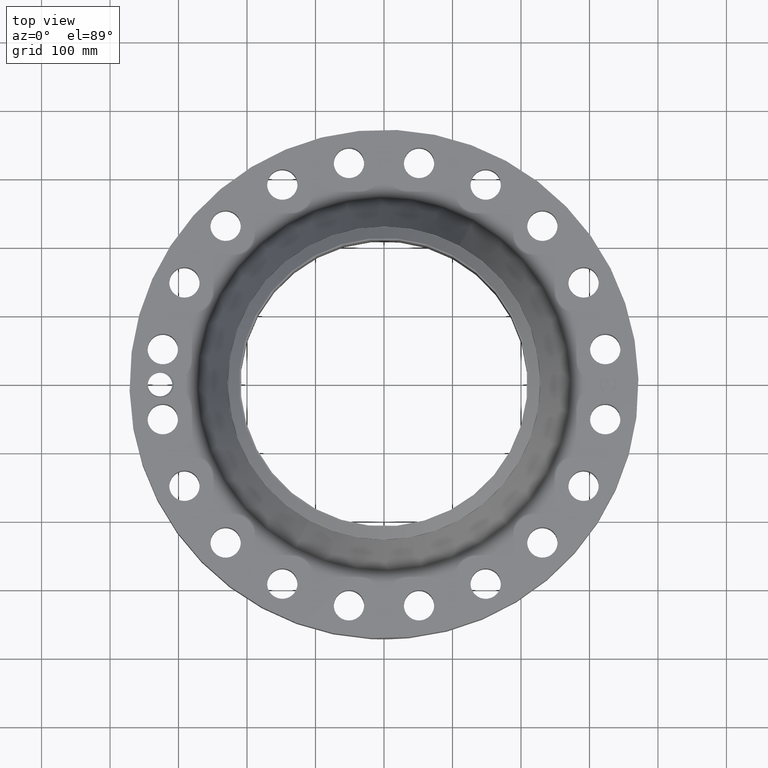
[diagram: clean part render]
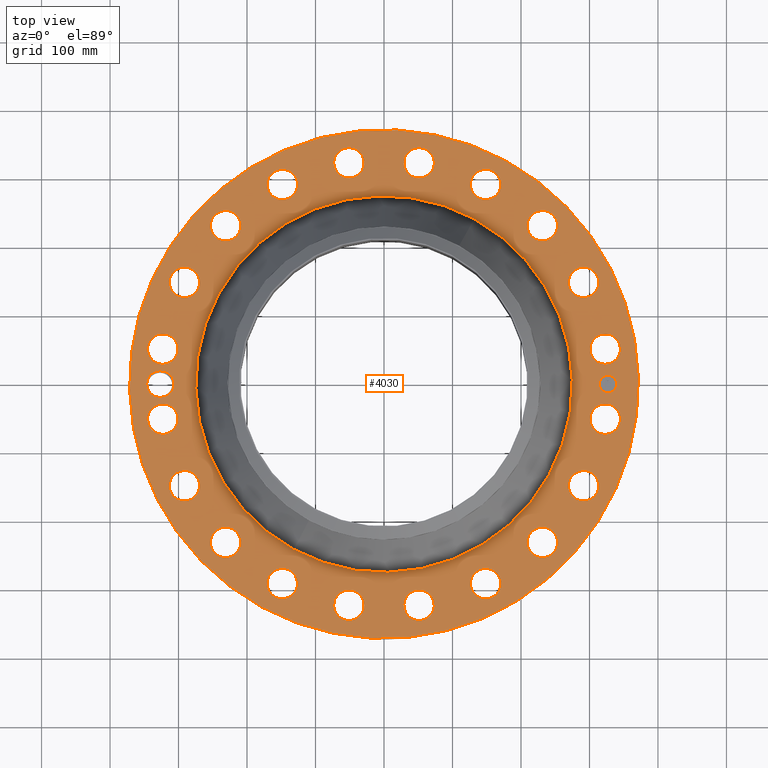
[diagram: same view with one face highlighted and labeled with its STEP entity id]
A machine part, top view. The second image highlights one B-rep face of the part: STEP entity #4030.
In plain terms, the highlighted planar face has unit normal (0, 0, -1).
Its self-contained STEP definition (entity closure, byte-faithful):
#2918=AXIS2_PLACEMENT_3D('Circle Axis2P3D',#2916,#2917,$) ;
#2944=AXIS2_PLACEMENT_3D('Circle Axis2P3D',#2942,#2943,$) ;
#3570=AXIS2_PLACEMENT_3D('Plane Axis2P3D',#3567,#3568,#3569) ;
#3574=AXIS2_PLACEMENT_3D('Circle Axis2P3D',#3572,#3573,$) ;
#3583=AXIS2_PLACEMENT_3D('Circle Axis2P3D',#3581,#3582,$) ;
#3632=AXIS2_PLACEMENT_3D('Circle Axis2P3D',#3630,#3631,$) ;
#3639=AXIS2_PLACEMENT_3D('Circle Axis2P3D',#3637,#3638,$) ;
#3650=AXIS2_PLACEMENT_3D('Circle Axis2P3D',#3648,#3649,$) ;
#3659=AXIS2_PLACEMENT_3D('Circle Axis2P3D',#3657,#3658,$) ;
#3672=AXIS2_PLACEMENT_3D('Circle Axis2P3D',#3670,#3671,$) ;
#3681=AXIS2_PLACEMENT_3D('Circle Axis2P3D',#3679,#3680,$) ;
#3690=AXIS2_PLACEMENT_3D('Circle Axis2P3D',#3688,#3689,$) ;
#3699=AXIS2_PLACEMENT_3D('Circle Axis2P3D',#3697,#3698,$) ;
#3708=AXIS2_PLACEMENT_3D('Circle Axis2P3D',#3706,#3707,$) ;
#3717=AXIS2_PLACEMENT_3D('Circle Axis2P3D',#3715,#3716,$) ;
#3726=AXIS2_PLACEMENT_3D('Circle Axis2P3D',#3724,#3725,$) ;
#3735=AXIS2_PLACEMENT_3D('Circle Axis2P3D',#3733,#3734,$) ;
#3744=AXIS2_PLACEMENT_3D('Circle Axis2P3D',#3742,#3743,$) ;
#3753=AXIS2_PLACEMENT_3D('Circle Axis2P3D',#3751,#3752,$) ;
#3762=AXIS2_PLACEMENT_3D('Circle Axis2P3D',#3760,#3761,$) ;
#3771=AXIS2_PLACEMENT_3D('Circle Axis2P3D',#3769,#3770,$) ;
#3780=AXIS2_PLACEMENT_3D('Circle Axis2P3D',#3778,#3779,$) ;
#3789=AXIS2_PLACEMENT_3D('Circle Axis2P3D',#3787,#3788,$) ;
#3798=AXIS2_PLACEMENT_3D('Circle Axis2P3D',#3796,#3797,$) ;
#3807=AXIS2_PLACEMENT_3D('Circle Axis2P3D',#3805,#3806,$) ;
#3816=AXIS2_PLACEMENT_3D('Circle Axis2P3D',#3814,#3815,$) ;
#3825=AXIS2_PLACEMENT_3D('Circle Axis2P3D',#3823,#3824,$) ;
#3834=AXIS2_PLACEMENT_3D('Circle Axis2P3D',#3832,#3833,$) ;
#3843=AXIS2_PLACEMENT_3D('Circle Axis2P3D',#3841,#3842,$) ;
#3852=AXIS2_PLACEMENT_3D('Circle Axis2P3D',#3850,#3851,$) ;
#3861=AXIS2_PLACEMENT_3D('Circle Axis2P3D',#3859,#3860,$) ;
#3870=AXIS2_PLACEMENT_3D('Circle Axis2P3D',#3868,#3869,$) ;
#3879=AXIS2_PLACEMENT_3D('Circle Axis2P3D',#3877,#3878,$) ;
#3888=AXIS2_PLACEMENT_3D('Circle Axis2P3D',#3886,#3887,$) ;
#3897=AXIS2_PLACEMENT_3D('Circle Axis2P3D',#3895,#3896,$) ;
#3906=AXIS2_PLACEMENT_3D('Circle Axis2P3D',#3904,#3905,$) ;
#3915=AXIS2_PLACEMENT_3D('Circle Axis2P3D',#3913,#3914,$) ;
#3924=AXIS2_PLACEMENT_3D('Circle Axis2P3D',#3922,#3923,$) ;
#3933=AXIS2_PLACEMENT_3D('Circle Axis2P3D',#3931,#3932,$) ;
#3942=AXIS2_PLACEMENT_3D('Circle Axis2P3D',#3940,#3941,$) ;
#3951=AXIS2_PLACEMENT_3D('Circle Axis2P3D',#3949,#3950,$) ;
#3960=AXIS2_PLACEMENT_3D('Circle Axis2P3D',#3958,#3959,$) ;
#3969=AXIS2_PLACEMENT_3D('Circle Axis2P3D',#3967,#3968,$) ;
#3978=AXIS2_PLACEMENT_3D('Circle Axis2P3D',#3976,#3977,$) ;
#3987=AXIS2_PLACEMENT_3D('Circle Axis2P3D',#3985,#3986,$) ;
#3996=AXIS2_PLACEMENT_3D('Circle Axis2P3D',#3994,#3995,$) ;
#4005=AXIS2_PLACEMENT_3D('Circle Axis2P3D',#4003,#4004,$) ;
#4014=AXIS2_PLACEMENT_3D('Circle Axis2P3D',#4012,#4013,$) ;
#4023=AXIS2_PLACEMENT_3D('Circle Axis2P3D',#4021,#4022,$) ;
#2916=CARTESIAN_POINT('Axis2P3D Location',(0.,0.,3.56200000001)) ;
#2920=CARTESIAN_POINT('Vertex',(5.18820340782,9.49694263577,3.56200000001)) ;
#2922=CARTESIAN_POINT('Vertex',(-5.18820340782,-9.49694263577,3.56200000001)) ;
#2942=CARTESIAN_POINT('Axis2P3D Location',(0.,0.,3.56200000001)) ;
#3567=CARTESIAN_POINT('Axis2P3D Location',(0.,14.6250000001,3.56200000001)) ;
#3572=CARTESIAN_POINT('Axis2P3D Location',(0.,0.,3.56200000001)) ;
#3576=CARTESIAN_POINT('Vertex',(7.01159850211,12.8346449677,3.56200000001)) ;
#3578=CARTESIAN_POINT('Vertex',(-7.01159850211,-12.8346449677,3.56200000001)) ;
#3581=CARTESIAN_POINT('Axis2P3D Location',(0.,0.,3.56200000001)) ;
#3591=CARTESIAN_POINT('Control Point',(-12.0625,2.23792987641E-015,3.56200000001)) ;
#3592=CARTESIAN_POINT('Control Point',(-12.0655027016,0.0700643671756,3.56200000001)) ;
#3593=CARTESIAN_POINT('Control Point',(-12.0760651226,0.139653910831,3.56200000001)) ;
#3594=CARTESIAN_POINT('Control Point',(-12.0941221859,0.207669651289,3.56200000001)) ;
#3595=CARTESIAN_POINT('Control Point',(-12.1445963315,0.338375320451,3.56200000001)) ;
#3596=CARTESIAN_POINT('Control Point',(-12.2216935889,0.45459657763,3.56200000001)) ;
#3597=CARTESIAN_POINT('Control Point',(-12.2663727942,0.508119555095,3.56200000001)) ;
#3598=CARTESIAN_POINT('Control Point',(-12.3498059005,0.588234271788,3.56200000001)) ;
#3599=CARTESIAN_POINT('Control Point',(-12.4457315881,0.651398109265,3.56200000001)) ;
#3600=CARTESIAN_POINT('Control Point',(-12.4858245861,0.67374969787,3.56200000001)) ;
#3601=CARTESIAN_POINT('Control Point',(-12.5584161227,0.707459372316,3.56200000001)) ;
#3602=CARTESIAN_POINT('Control Point',(-12.6344370824,0.731460619312,3.56200000001)) ;
#3603=CARTESIAN_POINT('Control Point',(-12.6674615636,0.739905637039,3.56200000001)) ;
#3604=CARTESIAN_POINT('Control Point',(-12.7008392342,0.746494339125,3.56200000001)) ;
#3605=CARTESIAN_POINT('Control Point',(-12.7344305313,0.751211213289,3.56200000001)) ;
#3606=CARTESIAN_POINT('Vertex',(-12.0625,2.23792987641E-015,3.56200000001)) ;
#3608=CARTESIAN_POINT('Vertex',(-12.7344305313,0.751211213289,3.56200000001)) ;
#3612=CARTESIAN_POINT('Control Point',(-12.0625,0.,3.56200000001)) ;
#3613=CARTESIAN_POINT('Control Point',(-12.0655034526,-0.0700818899843,3.56200000001)) ;
#3614=CARTESIAN_POINT('Control Point',(-12.0760704124,-0.139688717578,3.56200000001)) ;
#3615=CARTESIAN_POINT('Control Point',(-12.0941263267,-0.207699973518,3.56200000001)) ;
#3616=CARTESIAN_POINT('Control Point',(-12.1446047947,-0.338419067368,3.56200000001)) ;
#3617=CARTESIAN_POINT('Control Point',(-12.2216629118,-0.454573161277,3.56200000001)) ;
#3618=CARTESIAN_POINT('Control Point',(-12.2663277182,-0.508069800988,3.56200000001)) ;
#3619=CARTESIAN_POINT('Control Point',(-12.366418138,-0.604187141096,3.56200000001)) ;
#3620=CARTESIAN_POINT('Control Point',(-12.4844366994,-0.675897187593,3.56200000001)) ;
#3621=CARTESIAN_POINT('Control Point',(-12.5470591525,-0.705005544821,3.56200000001)) ;
#3622=CARTESIAN_POINT('Control Point',(-12.6230973424,-0.730534672824,3.56200000001)) ;
#3623=CARTESIAN_POINT('Control Point',(-12.7011241745,-0.745926347113,3.56200000001)) ;
#3624=CARTESIAN_POINT('Control Point',(-12.7123051902,-0.747917036937,3.56200000001)) ;
#3625=CARTESIAN_POINT('Control Point',(-12.7235165926,-0.749698983862,3.56200000001)) ;
#3626=CARTESIAN_POINT('Control Point',(-12.7347532243,-0.751271525076,3.56200000001)) ;
#3627=CARTESIAN_POINT('Vertex',(-12.7347532243,-0.751271525076,3.56200000001)) ;
#3630=CARTESIAN_POINT('Axis2P3D Location',(-12.8750000001,4.47585975282E-015,3.56200000001)) ;
#3634=CARTESIAN_POINT('Vertex',(-13.545692473,0.36640096788,3.56200000001)) ;
#3637=CARTESIAN_POINT('Axis2P3D Location',(-12.8750000001,4.47585975282E-015,3.56200000001)) ;
#3648=CARTESIAN_POINT('Axis2P3D Location',(12.7164873852,-2.0140937374,3.56200000001)) ;
#3652=CARTESIAN_POINT('Vertex',(11.9486026436,-1.59459639112,3.56200000001)) ;
#3654=CARTESIAN_POINT('Vertex',(13.4843721269,-2.43359108368,3.56200000001)) ;
#3657=CARTESIAN_POINT('Axis2P3D Location',(12.7164873852,-2.0140937374,3.56200000001)) ;
#3670=CARTESIAN_POINT('Axis2P3D Location',(11.471708999,-5.84512768417,3.56200000001)) ;
#3674=CARTESIAN_POINT('Vertex',(12.0723789772,-6.48138280381,3.56200000001)) ;
#3676=CARTESIAN_POINT('Vertex',(10.8710390208,-5.20887256453,3.56200000001)) ;
#3679=CARTESIAN_POINT('Axis2P3D Location',(11.471708999,-5.84512768417,3.56200000001)) ;
#3688=CARTESIAN_POINT('Axis2P3D Location',(9.10399980781,-9.10399980781,3.56200000001)) ;
#3692=CARTESIAN_POINT('Vertex',(9.47865726002,-9.89473161666,3.56200000001)) ;
#3694=CARTESIAN_POINT('Vertex',(8.72934235561,-8.31326799897,3.56200000001)) ;
#3697=CARTESIAN_POINT('Axis2P3D Location',(9.10399980781,-9.10399980781,3.56200000001)) ;
#3706=CARTESIAN_POINT('Axis2P3D Location',(5.84512768417,-11.471708999,3.56200000001)) ;
#3710=CARTESIAN_POINT('Vertex',(5.95709852854,-12.3395151582,3.56200000001)) ;
#3712=CARTESIAN_POINT('Vertex',(5.7331568398,-10.6039028397,3.56200000001)) ;
#3715=CARTESIAN_POINT('Axis2P3D Location',(5.84512768417,-11.471708999,3.56200000001)) ;
#3724=CARTESIAN_POINT('Axis2P3D Location',(2.0140937374,-12.7164873852,3.56200000001)) ;
#3728=CARTESIAN_POINT('Vertex',(1.85241748755,-13.5764209816,3.56200000001)) ;
#3730=CARTESIAN_POINT('Vertex',(2.17576998726,-11.8565537888,3.56200000001)) ;
#3733=CARTESIAN_POINT('Axis2P3D Location',(2.0140937374,-12.7164873852,3.56200000001)) ;
#3742=CARTESIAN_POINT('Axis2P3D Location',(-2.0140937374,-12.7164873852,3.56200000001)) ;
#3746=CARTESIAN_POINT('Vertex',(-2.43359108368,-13.4843721269,3.56200000001)) ;
#3748=CARTESIAN_POINT('Vertex',(-1.59459639112,-11.9486026436,3.56200000001)) ;
#3751=CARTESIAN_POINT('Axis2P3D Location',(-2.0140937374,-12.7164873852,3.56200000001)) ;
#3760=CARTESIAN_POINT('Axis2P3D Location',(-5.84512768417,-11.471708999,3.56200000001)) ;
#3764=CARTESIAN_POINT('Vertex',(-6.48138280381,-12.0723789772,3.56200000001)) ;
#3766=CARTESIAN_POINT('Vertex',(-5.20887256453,-10.8710390208,3.56200000001)) ;
#3769=CARTESIAN_POINT('Axis2P3D Location',(-5.84512768417,-11.471708999,3.56200000001)) ;
#3778=CARTESIAN_POINT('Axis2P3D Location',(-9.10399980781,-9.10399980781,3.56200000001)) ;
#3782=CARTESIAN_POINT('Vertex',(-9.89473161666,-9.47865726002,3.56200000001)) ;
#3784=CARTESIAN_POINT('Vertex',(-8.31326799897,-8.72934235561,3.56200000001)) ;
#3787=CARTESIAN_POINT('Axis2P3D Location',(-9.10399980781,-9.10399980781,3.56200000001)) ;
#3796=CARTESIAN_POINT('Axis2P3D Location',(-11.471708999,-5.84512768417,3.56200000001)) ;
#3800=CARTESIAN_POINT('Vertex',(-12.3395151582,-5.95709852854,3.56200000001)) ;
#3802=CARTESIAN_POINT('Vertex',(-10.6039028397,-5.7331568398,3.56200000001)) ;
#3805=CARTESIAN_POINT('Axis2P3D Location',(-11.471708999,-5.84512768417,3.56200000001)) ;
#3814=CARTESIAN_POINT('Axis2P3D Location',(-12.7164873852,-2.0140937374,3.56200000001)) ;
#3818=CARTESIAN_POINT('Vertex',(-13.5764209816,-1.85241748755,3.56200000001)) ;
#3820=CARTESIAN_POINT('Vertex',(-11.8565537888,-2.17576998726,3.56200000001)) ;
#3823=CARTESIAN_POINT('Axis2P3D Location',(-12.7164873852,-2.0140937374,3.56200000001)) ;
#3832=CARTESIAN_POINT('Axis2P3D Location',(-12.7164873852,2.0140937374,3.56200000001)) ;
#3836=CARTESIAN_POINT('Vertex',(-13.4843721269,2.43359108368,3.56200000001)) ;
#3838=CARTESIAN_POINT('Vertex',(-11.9486026436,1.59459639112,3.56200000001)) ;
#3841=CARTESIAN_POINT('Axis2P3D Location',(-12.7164873852,2.0140937374,3.56200000001)) ;
#3850=CARTESIAN_POINT('Axis2P3D Location',(-11.471708999,5.84512768417,3.56200000001)) ;
#3854=CARTESIAN_POINT('Vertex',(-12.0723789772,6.48138280381,3.56200000001)) ;
#3856=CARTESIAN_POINT('Vertex',(-10.8710390208,5.20887256453,3.56200000001)) ;
#3859=CARTESIAN_POINT('Axis2P3D Location',(-11.471708999,5.84512768417,3.56200000001)) ;
#3868=CARTESIAN_POINT('Axis2P3D Location',(-9.10399980781,9.10399980781,3.56200000001)) ;
#3872=CARTESIAN_POINT('Vertex',(-9.47865726002,9.89473161666,3.56200000001)) ;
#3874=CARTESIAN_POINT('Vertex',(-8.72934235561,8.31326799897,3.56200000001)) ;
#3877=CARTESIAN_POINT('Axis2P3D Location',(-9.10399980781,9.10399980781,3.56200000001)) ;
#3886=CARTESIAN_POINT('Axis2P3D Location',(-5.84512768417,11.471708999,3.56200000001)) ;
#3890=CARTESIAN_POINT('Vertex',(-5.95709852854,12.3395151582,3.56200000001)) ;
#3892=CARTESIAN_POINT('Vertex',(-5.7331568398,10.6039028397,3.56200000001)) ;
#3895=CARTESIAN_POINT('Axis2P3D Location',(-5.84512768417,11.471708999,3.56200000001)) ;
#3904=CARTESIAN_POINT('Axis2P3D Location',(-2.0140937374,12.7164873852,3.56200000001)) ;
#3908=CARTESIAN_POINT('Vertex',(-1.85241748755,13.5764209816,3.56200000001)) ;
#3910=CARTESIAN_POINT('Vertex',(-2.17576998726,11.8565537888,3.56200000001)) ;
#3913=CARTESIAN_POINT('Axis2P3D Location',(-2.0140937374,12.7164873852,3.56200000001)) ;
#3922=CARTESIAN_POINT('Axis2P3D Location',(2.0140937374,12.7164873852,3.56200000001)) ;
#3926=CARTESIAN_POINT('Vertex',(2.43359108368,13.4843721269,3.56200000001)) ;
#3928=CARTESIAN_POINT('Vertex',(1.59459639112,11.9486026436,3.56200000001)) ;
#3931=CARTESIAN_POINT('Axis2P3D Location',(2.0140937374,12.7164873852,3.56200000001)) ;
#3940=CARTESIAN_POINT('Axis2P3D Location',(5.84512768417,11.471708999,3.56200000001)) ;
#3944=CARTESIAN_POINT('Vertex',(6.48138280381,12.0723789772,3.56200000001)) ;
#3946=CARTESIAN_POINT('Vertex',(5.20887256453,10.8710390208,3.56200000001)) ;
#3949=CARTESIAN_POINT('Axis2P3D Location',(5.84512768417,11.471708999,3.56200000001)) ;
#3958=CARTESIAN_POINT('Axis2P3D Location',(9.10399980781,9.10399980781,3.56200000001)) ;
#3962=CARTESIAN_POINT('Vertex',(9.89473161666,9.47865726002,3.56200000001)) ;
#3964=CARTESIAN_POINT('Vertex',(8.31326799897,8.72934235561,3.56200000001)) ;
#3967=CARTESIAN_POINT('Axis2P3D Location',(9.10399980781,9.10399980781,3.56200000001)) ;
#3976=CARTESIAN_POINT('Axis2P3D Location',(11.471708999,5.84512768417,3.56200000001)) ;
#3980=CARTESIAN_POINT('Vertex',(12.3395151582,5.95709852854,3.56200000001)) ;
#3982=CARTESIAN_POINT('Vertex',(10.6039028397,5.7331568398,3.56200000001)) ;
#3985=CARTESIAN_POINT('Axis2P3D Location',(11.471708999,5.84512768417,3.56200000001)) ;
#3994=CARTESIAN_POINT('Axis2P3D Location',(12.7164873852,2.0140937374,3.56200000001)) ;
#3998=CARTESIAN_POINT('Vertex',(13.5764209816,1.85241748755,3.56200000001)) ;
#4000=CARTESIAN_POINT('Vertex',(11.8565537888,2.17576998726,3.56200000001)) ;
#4003=CARTESIAN_POINT('Axis2P3D Location',(12.7164873852,2.0140937374,3.56200000001)) ;
#4012=CARTESIAN_POINT('Axis2P3D Location',(12.8750000001,0.,3.56200000001)) ;
#4016=CARTESIAN_POINT('Vertex',(12.8750000001,0.499999995002,3.56200000001)) ;
#4018=CARTESIAN_POINT('Vertex',(12.8750000001,-0.499999995002,3.56200000001)) ;
#4021=CARTESIAN_POINT('Axis2P3D Location',(12.8750000001,0.,3.56200000001)) ;
#2917=DIRECTION('Axis2P3D Direction',(0.,0.,-0.0393700787402)) ;
#2943=DIRECTION('Axis2P3D Direction',(0.,0.,-0.0393700787402)) ;
#3568=DIRECTION('Axis2P3D Direction',(0.,0.,-0.0393700787402)) ;
#3569=DIRECTION('Axis2P3D XDirection',(0.0393700787402,0.,0.)) ;
#3573=DIRECTION('Axis2P3D Direction',(0.,0.,-0.0393700787402)) ;
#3582=DIRECTION('Axis2P3D Direction',(0.,0.,-0.0393700787402)) ;
#3631=DIRECTION('Axis2P3D Direction',(0.,0.,-0.0393700787402)) ;
#3638=DIRECTION('Axis2P3D Direction',(0.,0.,-0.0393700787402)) ;
#3649=DIRECTION('Axis2P3D Direction',(0.,0.,-0.0393700787402)) ;
#3658=DIRECTION('Axis2P3D Direction',(0.,0.,-0.0393700787402)) ;
#3671=DIRECTION('Axis2P3D Direction',(0.,0.,-0.0393700787402)) ;
#3680=DIRECTION('Axis2P3D Direction',(0.,0.,-0.0393700787402)) ;
#3689=DIRECTION('Axis2P3D Direction',(0.,0.,-0.0393700787402)) ;
#3698=DIRECTION('Axis2P3D Direction',(0.,0.,-0.0393700787402)) ;
#3707=DIRECTION('Axis2P3D Direction',(0.,0.,-0.0393700787402)) ;
#3716=DIRECTION('Axis2P3D Direction',(0.,0.,-0.0393700787402)) ;
#3725=DIRECTION('Axis2P3D Direction',(0.,0.,-0.0393700787402)) ;
#3734=DIRECTION('Axis2P3D Direction',(0.,0.,-0.0393700787402)) ;
#3743=DIRECTION('Axis2P3D Direction',(0.,0.,-0.0393700787402)) ;
#3752=DIRECTION('Axis2P3D Direction',(0.,0.,-0.0393700787402)) ;
#3761=DIRECTION('Axis2P3D Direction',(0.,0.,-0.0393700787402)) ;
#3770=DIRECTION('Axis2P3D Direction',(0.,0.,-0.0393700787402)) ;
#3779=DIRECTION('Axis2P3D Direction',(0.,0.,-0.0393700787402)) ;
#3788=DIRECTION('Axis2P3D Direction',(0.,0.,-0.0393700787402)) ;
#3797=DIRECTION('Axis2P3D Direction',(0.,0.,-0.0393700787402)) ;
#3806=DIRECTION('Axis2P3D Direction',(0.,0.,-0.0393700787402)) ;
#3815=DIRECTION('Axis2P3D Direction',(0.,0.,-0.0393700787402)) ;
#3824=DIRECTION('Axis2P3D Direction',(0.,0.,-0.0393700787402)) ;
#3833=DIRECTION('Axis2P3D Direction',(0.,0.,-0.0393700787402)) ;
#3842=DIRECTION('Axis2P3D Direction',(0.,0.,-0.0393700787402)) ;
#3851=DIRECTION('Axis2P3D Direction',(0.,0.,-0.0393700787402)) ;
#3860=DIRECTION('Axis2P3D Direction',(0.,0.,-0.0393700787402)) ;
#3869=DIRECTION('Axis2P3D Direction',(0.,0.,-0.0393700787402)) ;
#3878=DIRECTION('Axis2P3D Direction',(0.,0.,-0.0393700787402)) ;
#3887=DIRECTION('Axis2P3D Direction',(0.,0.,-0.0393700787402)) ;
#3896=DIRECTION('Axis2P3D Direction',(0.,0.,-0.0393700787402)) ;
#3905=DIRECTION('Axis2P3D Direction',(0.,0.,-0.0393700787402)) ;
#3914=DIRECTION('Axis2P3D Direction',(0.,0.,-0.0393700787402)) ;
#3923=DIRECTION('Axis2P3D Direction',(0.,0.,-0.0393700787402)) ;
#3932=DIRECTION('Axis2P3D Direction',(0.,0.,-0.0393700787402)) ;
#3941=DIRECTION('Axis2P3D Direction',(0.,0.,-0.0393700787402)) ;
#3950=DIRECTION('Axis2P3D Direction',(0.,0.,-0.0393700787402)) ;
#3959=DIRECTION('Axis2P3D Direction',(0.,0.,-0.0393700787402)) ;
#3968=DIRECTION('Axis2P3D Direction',(0.,0.,-0.0393700787402)) ;
#3977=DIRECTION('Axis2P3D Direction',(0.,0.,-0.0393700787402)) ;
#3986=DIRECTION('Axis2P3D Direction',(0.,0.,-0.0393700787402)) ;
#3995=DIRECTION('Axis2P3D Direction',(0.,0.,-0.0393700787402)) ;
#4004=DIRECTION('Axis2P3D Direction',(0.,0.,-0.0393700787402)) ;
#4013=DIRECTION('Axis2P3D Direction',(0.,0.,-0.0393700787402)) ;
#4022=DIRECTION('Axis2P3D Direction',(0.,0.,-0.0393700787402)) ;
#3587=ORIENTED_EDGE('',*,*,#3580,.F.) ;
#3588=ORIENTED_EDGE('',*,*,#3585,.F.) ;
#3643=ORIENTED_EDGE('',*,*,#3610,.F.) ;
#3644=ORIENTED_EDGE('',*,*,#3629,.T.) ;
#3645=ORIENTED_EDGE('',*,*,#3636,.T.) ;
#3646=ORIENTED_EDGE('',*,*,#3641,.T.) ;
#3663=ORIENTED_EDGE('',*,*,#3656,.T.) ;
#3664=ORIENTED_EDGE('',*,*,#3661,.T.) ;
#3667=ORIENTED_EDGE('',*,*,#2946,.T.) ;
#3668=ORIENTED_EDGE('',*,*,#2924,.T.) ;
#3685=ORIENTED_EDGE('',*,*,#3678,.T.) ;
#3686=ORIENTED_EDGE('',*,*,#3683,.T.) ;
#3703=ORIENTED_EDGE('',*,*,#3696,.T.) ;
#3704=ORIENTED_EDGE('',*,*,#3701,.T.) ;
#3721=ORIENTED_EDGE('',*,*,#3714,.T.) ;
#3722=ORIENTED_EDGE('',*,*,#3719,.T.) ;
#3739=ORIENTED_EDGE('',*,*,#3732,.T.) ;
#3740=ORIENTED_EDGE('',*,*,#3737,.T.) ;
#3757=ORIENTED_EDGE('',*,*,#3750,.T.) ;
#3758=ORIENTED_EDGE('',*,*,#3755,.T.) ;
#3775=ORIENTED_EDGE('',*,*,#3768,.T.) ;
#3776=ORIENTED_EDGE('',*,*,#3773,.T.) ;
#3793=ORIENTED_EDGE('',*,*,#3786,.T.) ;
#3794=ORIENTED_EDGE('',*,*,#3791,.T.) ;
#3811=ORIENTED_EDGE('',*,*,#3804,.T.) ;
#3812=ORIENTED_EDGE('',*,*,#3809,.T.) ;
#3829=ORIENTED_EDGE('',*,*,#3822,.T.) ;
#3830=ORIENTED_EDGE('',*,*,#3827,.T.) ;
#3847=ORIENTED_EDGE('',*,*,#3840,.T.) ;
#3848=ORIENTED_EDGE('',*,*,#3845,.T.) ;
#3865=ORIENTED_EDGE('',*,*,#3858,.T.) ;
#3866=ORIENTED_EDGE('',*,*,#3863,.T.) ;
#3883=ORIENTED_EDGE('',*,*,#3876,.T.) ;
#3884=ORIENTED_EDGE('',*,*,#3881,.T.) ;
#3901=ORIENTED_EDGE('',*,*,#3894,.T.) ;
#3902=ORIENTED_EDGE('',*,*,#3899,.T.) ;
#3919=ORIENTED_EDGE('',*,*,#3912,.T.) ;
#3920=ORIENTED_EDGE('',*,*,#3917,.T.) ;
#3937=ORIENTED_EDGE('',*,*,#3930,.T.) ;
#3938=ORIENTED_EDGE('',*,*,#3935,.T.) ;
#3955=ORIENTED_EDGE('',*,*,#3948,.T.) ;
#3956=ORIENTED_EDGE('',*,*,#3953,.T.) ;
#3973=ORIENTED_EDGE('',*,*,#3966,.T.) ;
#3974=ORIENTED_EDGE('',*,*,#3971,.T.) ;
#3991=ORIENTED_EDGE('',*,*,#3984,.T.) ;
#3992=ORIENTED_EDGE('',*,*,#3989,.T.) ;
#4009=ORIENTED_EDGE('',*,*,#4002,.T.) ;
#4010=ORIENTED_EDGE('',*,*,#4007,.T.) ;
#4027=ORIENTED_EDGE('',*,*,#4020,.T.) ;
#4028=ORIENTED_EDGE('',*,*,#4025,.T.) ;
#3647=FACE_BOUND('',#3642,.T.) ;
#3665=FACE_BOUND('',#3662,.T.) ;
#3669=FACE_BOUND('',#3666,.T.) ;
#3687=FACE_BOUND('',#3684,.T.) ;
#3705=FACE_BOUND('',#3702,.T.) ;
#3723=FACE_BOUND('',#3720,.T.) ;
#3741=FACE_BOUND('',#3738,.T.) ;
#3759=FACE_BOUND('',#3756,.T.) ;
#3777=FACE_BOUND('',#3774,.T.) ;
#3795=FACE_BOUND('',#3792,.T.) ;
#3813=FACE_BOUND('',#3810,.T.) ;
#3831=FACE_BOUND('',#3828,.T.) ;
#3849=FACE_BOUND('',#3846,.T.) ;
#3867=FACE_BOUND('',#3864,.T.) ;
#3885=FACE_BOUND('',#3882,.T.) ;
#3903=FACE_BOUND('',#3900,.T.) ;
#3921=FACE_BOUND('',#3918,.T.) ;
#3939=FACE_BOUND('',#3936,.T.) ;
#3957=FACE_BOUND('',#3954,.T.) ;
#3975=FACE_BOUND('',#3972,.T.) ;
#3993=FACE_BOUND('',#3990,.T.) ;
#4011=FACE_BOUND('',#4008,.T.) ;
#4029=FACE_BOUND('',#4026,.T.) ;
#4030=ADVANCED_FACE('PartBody',(#3589,#3647,#3665,#3669,#3687,#3705,#3723,#3741,#3759,#3777,#3795,#3813,#3831,#3849,#3867,#3885,#3903,#3921,#3939,#3957,#3975,#3993,#4011,#4029),#3571,.F.) ;
#3590=B_SPLINE_CURVE_WITH_KNOTS('',5,(#3591,#3592,#3593,#3594,#3595,#3596,#3597,#3598,#3599,#3600,#3601,#3602,#3603,#3604,#3605),.UNSPECIFIED.,.F.,.U.,(6,3,3,3,6),(0.,12.1950206869,24.3883275048,32.5133230452,38.5899053908),.UNSPECIFIED.) ;
#3611=B_SPLINE_CURVE_WITH_KNOTS('',5,(#3612,#3613,#3614,#3615,#3616,#3617,#3618,#3619,#3620,#3621,#3622,#3623,#3624,#3625,#3626),.UNSPECIFIED.,.F.,.U.,(6,3,3,3,6),(0.,12.1980706114,24.4062847661,36.6208535265,38.6563632008),.UNSPECIFIED.) ;
#2919=CIRCLE('generated circle',#2918,10.8217084616) ;
#2945=CIRCLE('generated circle',#2944,10.8217084616) ;
#3575=CIRCLE('generated circle',#3574,14.6250000001) ;
#3584=CIRCLE('generated circle',#3583,14.6250000001) ;
#3633=CIRCLE('generated circle',#3632,0.764250000003) ;
#3640=CIRCLE('generated circle',#3639,0.764250000003) ;
#3651=CIRCLE('generated circle',#3650,0.875000000004) ;
#3660=CIRCLE('generated circle',#3659,0.875000000004) ;
#3673=CIRCLE('generated circle',#3672,0.875000000004) ;
#3682=CIRCLE('generated circle',#3681,0.875000000004) ;
#3691=CIRCLE('generated circle',#3690,0.875000000004) ;
#3700=CIRCLE('generated circle',#3699,0.875000000004) ;
#3709=CIRCLE('generated circle',#3708,0.875000000004) ;
#3718=CIRCLE('generated circle',#3717,0.875000000004) ;
#3727=CIRCLE('generated circle',#3726,0.875000000004) ;
#3736=CIRCLE('generated circle',#3735,0.875000000004) ;
#3745=CIRCLE('generated circle',#3744,0.875000000004) ;
#3754=CIRCLE('generated circle',#3753,0.875000000004) ;
#3763=CIRCLE('generated circle',#3762,0.875000000004) ;
#3772=CIRCLE('generated circle',#3771,0.875000000004) ;
#3781=CIRCLE('generated circle',#3780,0.875000000003) ;
#3790=CIRCLE('generated circle',#3789,0.875000000003) ;
#3799=CIRCLE('generated circle',#3798,0.875000000004) ;
#3808=CIRCLE('generated circle',#3807,0.875000000004) ;
#3817=CIRCLE('generated circle',#3816,0.875000000004) ;
#3826=CIRCLE('generated circle',#3825,0.875000000004) ;
#3835=CIRCLE('generated circle',#3834,0.875000000004) ;
#3844=CIRCLE('generated circle',#3843,0.875000000004) ;
#3853=CIRCLE('generated circle',#3852,0.875000000004) ;
#3862=CIRCLE('generated circle',#3861,0.875000000004) ;
#3871=CIRCLE('generated circle',#3870,0.875000000004) ;
#3880=CIRCLE('generated circle',#3879,0.875000000004) ;
#3889=CIRCLE('generated circle',#3888,0.875000000003) ;
#3898=CIRCLE('generated circle',#3897,0.875000000003) ;
#3907=CIRCLE('generated circle',#3906,0.875000000004) ;
#3916=CIRCLE('generated circle',#3915,0.875000000004) ;
#3925=CIRCLE('generated circle',#3924,0.875000000004) ;
#3934=CIRCLE('generated circle',#3933,0.875000000004) ;
#3943=CIRCLE('generated circle',#3942,0.875000000004) ;
#3952=CIRCLE('generated circle',#3951,0.875000000004) ;
#3961=CIRCLE('generated circle',#3960,0.875000000004) ;
#3970=CIRCLE('generated circle',#3969,0.875000000004) ;
#3979=CIRCLE('generated circle',#3978,0.875000000003) ;
#3988=CIRCLE('generated circle',#3987,0.875000000003) ;
#3997=CIRCLE('generated circle',#3996,0.875000000004) ;
#4006=CIRCLE('generated circle',#4005,0.875000000004) ;
#4015=CIRCLE('generated circle',#4014,0.499999995002) ;
#4024=CIRCLE('generated circle',#4023,0.499999995002) ;
#2924=EDGE_CURVE('',#2921,#2923,#2919,.T.) ;
#2946=EDGE_CURVE('',#2923,#2921,#2945,.T.) ;
#3580=EDGE_CURVE('',#3577,#3579,#3575,.T.) ;
#3585=EDGE_CURVE('',#3579,#3577,#3584,.T.) ;
#3610=EDGE_CURVE('',#3607,#3609,#3590,.T.) ;
#3629=EDGE_CURVE('',#3607,#3628,#3611,.T.) ;
#3636=EDGE_CURVE('',#3628,#3635,#3633,.T.) ;
#3641=EDGE_CURVE('',#3635,#3609,#3640,.T.) ;
#3656=EDGE_CURVE('',#3653,#3655,#3651,.T.) ;
#3661=EDGE_CURVE('',#3655,#3653,#3660,.T.) ;
#3678=EDGE_CURVE('',#3675,#3677,#3673,.T.) ;
#3683=EDGE_CURVE('',#3677,#3675,#3682,.T.) ;
#3696=EDGE_CURVE('',#3693,#3695,#3691,.T.) ;
#3701=EDGE_CURVE('',#3695,#3693,#3700,.T.) ;
#3714=EDGE_CURVE('',#3711,#3713,#3709,.T.) ;
#3719=EDGE_CURVE('',#3713,#3711,#3718,.T.) ;
#3732=EDGE_CURVE('',#3729,#3731,#3727,.T.) ;
#3737=EDGE_CURVE('',#3731,#3729,#3736,.T.) ;
#3750=EDGE_CURVE('',#3747,#3749,#3745,.T.) ;
#3755=EDGE_CURVE('',#3749,#3747,#3754,.T.) ;
#3768=EDGE_CURVE('',#3765,#3767,#3763,.T.) ;
#3773=EDGE_CURVE('',#3767,#3765,#3772,.T.) ;
#3786=EDGE_CURVE('',#3783,#3785,#3781,.T.) ;
#3791=EDGE_CURVE('',#3785,#3783,#3790,.T.) ;
#3804=EDGE_CURVE('',#3801,#3803,#3799,.T.) ;
#3809=EDGE_CURVE('',#3803,#3801,#3808,.T.) ;
#3822=EDGE_CURVE('',#3819,#3821,#3817,.T.) ;
#3827=EDGE_CURVE('',#3821,#3819,#3826,.T.) ;
#3840=EDGE_CURVE('',#3837,#3839,#3835,.T.) ;
#3845=EDGE_CURVE('',#3839,#3837,#3844,.T.) ;
#3858=EDGE_CURVE('',#3855,#3857,#3853,.T.) ;
#3863=EDGE_CURVE('',#3857,#3855,#3862,.T.) ;
#3876=EDGE_CURVE('',#3873,#3875,#3871,.T.) ;
#3881=EDGE_CURVE('',#3875,#3873,#3880,.T.) ;
#3894=EDGE_CURVE('',#3891,#3893,#3889,.T.) ;
#3899=EDGE_CURVE('',#3893,#3891,#3898,.T.) ;
#3912=EDGE_CURVE('',#3909,#3911,#3907,.T.) ;
#3917=EDGE_CURVE('',#3911,#3909,#3916,.T.) ;
#3930=EDGE_CURVE('',#3927,#3929,#3925,.T.) ;
#3935=EDGE_CURVE('',#3929,#3927,#3934,.T.) ;
#3948=EDGE_CURVE('',#3945,#3947,#3943,.T.) ;
#3953=EDGE_CURVE('',#3947,#3945,#3952,.T.) ;
#3966=EDGE_CURVE('',#3963,#3965,#3961,.T.) ;
#3971=EDGE_CURVE('',#3965,#3963,#3970,.T.) ;
#3984=EDGE_CURVE('',#3981,#3983,#3979,.T.) ;
#3989=EDGE_CURVE('',#3983,#3981,#3988,.T.) ;
#4002=EDGE_CURVE('',#3999,#4001,#3997,.T.) ;
#4007=EDGE_CURVE('',#4001,#3999,#4006,.T.) ;
#4020=EDGE_CURVE('',#4017,#4019,#4015,.T.) ;
#4025=EDGE_CURVE('',#4019,#4017,#4024,.T.) ;
#3586=EDGE_LOOP('',(#3587,#3588)) ;
#3642=EDGE_LOOP('',(#3643,#3644,#3645,#3646)) ;
#3662=EDGE_LOOP('',(#3663,#3664)) ;
#3666=EDGE_LOOP('',(#3667,#3668)) ;
#3684=EDGE_LOOP('',(#3685,#3686)) ;
#3702=EDGE_LOOP('',(#3703,#3704)) ;
#3720=EDGE_LOOP('',(#3721,#3722)) ;
#3738=EDGE_LOOP('',(#3739,#3740)) ;
#3756=EDGE_LOOP('',(#3757,#3758)) ;
#3774=EDGE_LOOP('',(#3775,#3776)) ;
#3792=EDGE_LOOP('',(#3793,#3794)) ;
#3810=EDGE_LOOP('',(#3811,#3812)) ;
#3828=EDGE_LOOP('',(#3829,#3830)) ;
#3846=EDGE_LOOP('',(#3847,#3848)) ;
#3864=EDGE_LOOP('',(#3865,#3866)) ;
#3882=EDGE_LOOP('',(#3883,#3884)) ;
#3900=EDGE_LOOP('',(#3901,#3902)) ;
#3918=EDGE_LOOP('',(#3919,#3920)) ;
#3936=EDGE_LOOP('',(#3937,#3938)) ;
#3954=EDGE_LOOP('',(#3955,#3956)) ;
#3972=EDGE_LOOP('',(#3973,#3974)) ;
#3990=EDGE_LOOP('',(#3991,#3992)) ;
#4008=EDGE_LOOP('',(#4009,#4010)) ;
#4026=EDGE_LOOP('',(#4027,#4028)) ;
#3589=FACE_OUTER_BOUND('',#3586,.T.) ;
#3571=PLANE('',#3570) ;
#2921=VERTEX_POINT('',#2920) ;
#2923=VERTEX_POINT('',#2922) ;
#3577=VERTEX_POINT('',#3576) ;
#3579=VERTEX_POINT('',#3578) ;
#3607=VERTEX_POINT('',#3606) ;
#3609=VERTEX_POINT('',#3608) ;
#3628=VERTEX_POINT('',#3627) ;
#3635=VERTEX_POINT('',#3634) ;
#3653=VERTEX_POINT('',#3652) ;
#3655=VERTEX_POINT('',#3654) ;
#3675=VERTEX_POINT('',#3674) ;
#3677=VERTEX_POINT('',#3676) ;
#3693=VERTEX_POINT('',#3692) ;
#3695=VERTEX_POINT('',#3694) ;
#3711=VERTEX_POINT('',#3710) ;
#3713=VERTEX_POINT('',#3712) ;
#3729=VERTEX_POINT('',#3728) ;
#3731=VERTEX_POINT('',#3730) ;
#3747=VERTEX_POINT('',#3746) ;
#3749=VERTEX_POINT('',#3748) ;
#3765=VERTEX_POINT('',#3764) ;
#3767=VERTEX_POINT('',#3766) ;
#3783=VERTEX_POINT('',#3782) ;
#3785=VERTEX_POINT('',#3784) ;
#3801=VERTEX_POINT('',#3800) ;
#3803=VERTEX_POINT('',#3802) ;
#3819=VERTEX_POINT('',#3818) ;
#3821=VERTEX_POINT('',#3820) ;
#3837=VERTEX_POINT('',#3836) ;
#3839=VERTEX_POINT('',#3838) ;
#3855=VERTEX_POINT('',#3854) ;
#3857=VERTEX_POINT('',#3856) ;
#3873=VERTEX_POINT('',#3872) ;
#3875=VERTEX_POINT('',#3874) ;
#3891=VERTEX_POINT('',#3890) ;
#3893=VERTEX_POINT('',#3892) ;
#3909=VERTEX_POINT('',#3908) ;
#3911=VERTEX_POINT('',#3910) ;
#3927=VERTEX_POINT('',#3926) ;
#3929=VERTEX_POINT('',#3928) ;
#3945=VERTEX_POINT('',#3944) ;
#3947=VERTEX_POINT('',#3946) ;
#3963=VERTEX_POINT('',#3962) ;
#3965=VERTEX_POINT('',#3964) ;
#3981=VERTEX_POINT('',#3980) ;
#3983=VERTEX_POINT('',#3982) ;
#3999=VERTEX_POINT('',#3998) ;
#4001=VERTEX_POINT('',#4000) ;
#4017=VERTEX_POINT('',#4016) ;
#4019=VERTEX_POINT('',#4018) ;